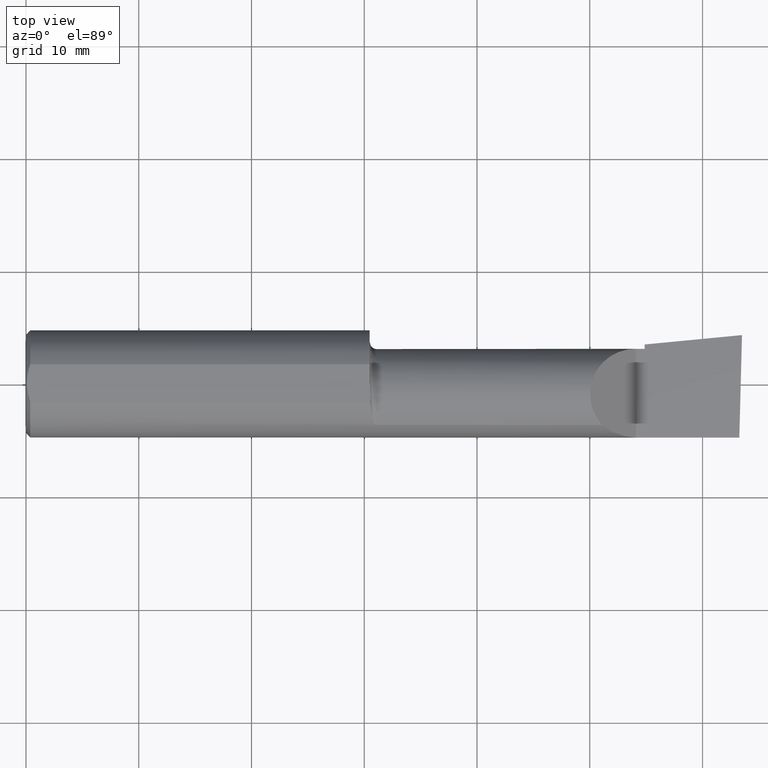
[diagram: clean part render]
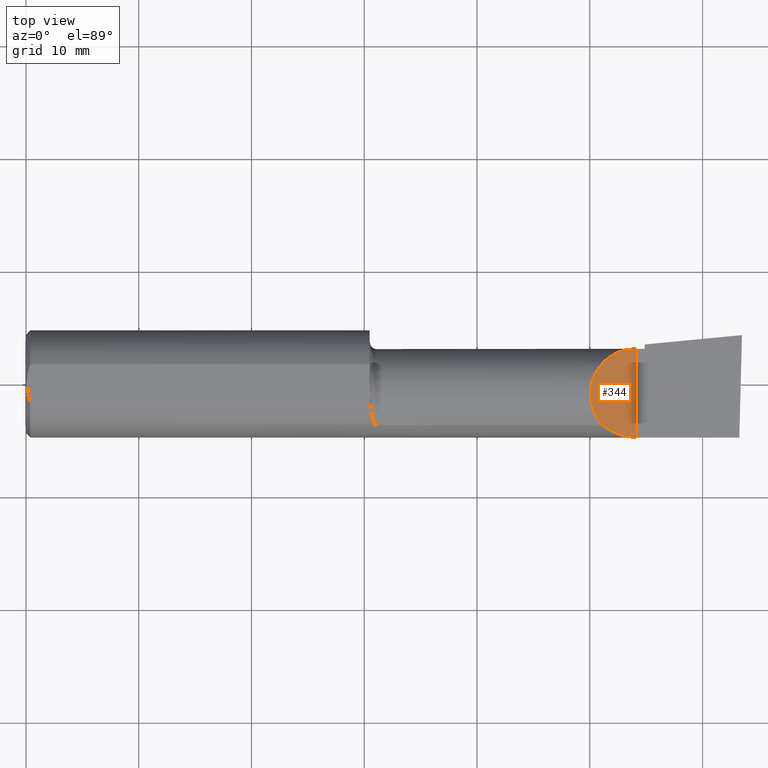
[diagram: same view with one face highlighted and labeled with its STEP entity id]
A machine part, top view. The second image highlights one B-rep face of the part: STEP entity #344.
In plain terms, the highlighted planar face has unit normal (-0.7071, 0, -0.7071).
Its self-contained STEP definition (entity closure, byte-faithful):
#18 = EDGE_CURVE ( 'NONE', #114, #513, #243, .T. ) ;
#35 = AXIS2_PLACEMENT_3D ( 'NONE', #56, #592, #48 ) ;
#48 = DIRECTION ( 'NONE',  ( -0.7071067811865511255, 0.000000000000000000, 0.7071067811865437980 ) ) ;
#54 = VECTOR ( 'NONE', #203, 39.37007874015748143 ) ;
#56 = CARTESIAN_POINT ( 'NONE',  ( 2.129999999999999893, -0.2500000000000000555, 1.065442715258197396E-16 ) ) ;
#74 = CARTESIAN_POINT ( 'NONE',  ( 2.129999999999999893, 0.1226499999999998147, 1.065442715258197396E-16 ) ) ;
#91 = CARTESIAN_POINT ( 'NONE',  ( 2.086590019116435268, -0.1873500000000000165, 0.04340998088356443074 ) ) ;
#114 = VERTEX_POINT ( 'NONE', #607 ) ;
#146 = EDGE_CURVE ( 'NONE', #416, #513, #434, .T. ) ;
#161 = CARTESIAN_POINT ( 'NONE',  ( 2.129999999999999893, 0.1226499999999998147, 1.065442715258197396E-16 ) ) ;
#203 = DIRECTION ( 'NONE',  ( -0.000000000000000000, 1.000000000000000000, -0.000000000000000000 ) ) ;
#210 = CARTESIAN_POINT ( 'NONE',  ( 1.902393788885675230, -0.02584108761840225171, 0.2276062111143221378 ) ) ;
#220 = EDGE_LOOP ( 'NONE', ( #308, #241, #566 ) ) ;
#240 = FACE_OUTER_BOUND ( 'NONE', #220, .T. ) ;
#241 = ORIENTED_EDGE ( 'NONE', *, *, #248, .F. ) ;
#243 = LINE ( 'NONE', #543, #54 ) ;
#248 = EDGE_CURVE ( 'NONE', #114, #416, #276, .T. ) ;
#264 = CARTESIAN_POINT ( 'NONE',  ( 2.011965325165093077, -0.1454917112299461968, 0.1180346748349056646 ) ) ;
#276 =( BOUNDED_CURVE ( )  B_SPLINE_CURVE ( 3, ( #336, #91, #533, #277 ),
 .UNSPECIFIED., .F., .F. ) 
 B_SPLINE_CURVE_WITH_KNOTS ( ( 4, 4 ),
 ( 4.712388980384689674, 5.393970886271890031 ),
 .UNSPECIFIED. ) 
 CURVE ( )  GEOMETRIC_REPRESENTATION_ITEM ( )  RATIONAL_B_SPLINE_CURVE ( ( 1.000000000000000000, 0.9616603987079546112, 0.9616603987079546112, 1.000000000000000000 ) ) 
 REPRESENTATION_ITEM ( '' )  );
#277 = CARTESIAN_POINT ( 'NONE',  ( 2.011965325165093077, -0.1454917112299461968, 0.1180346748349056646 ) ) ;
#308 = ORIENTED_EDGE ( 'NONE', *, *, #146, .F. ) ;
#336 = CARTESIAN_POINT ( 'NONE',  ( 2.129999999999999893, -0.1873499999999999888, 1.065442715258197396E-16 ) ) ;
#342 = PLANE ( 'NONE',  #35 ) ;
#344 = ADVANCED_FACE ( 'NONE', ( #240 ), #342, .F. ) ;
#416 = VERTEX_POINT ( 'NONE', #547 ) ;
#434 =( BOUNDED_CURVE ( )  B_SPLINE_CURVE ( 3, ( #264, #210, #555, #161 ),
 .UNSPECIFIED., .F., .F. ) 
 B_SPLINE_CURVE_WITH_KNOTS ( ( 4, 4 ),
 ( 5.541729662751389007, 7.853981633974482790 ),
 .UNSPECIFIED. ) 
 CURVE ( )  GEOMETRIC_REPRESENTATION_ITEM ( )  RATIONAL_B_SPLINE_CURVE ( ( 1.000000000000000000, 0.6019254882129729811, 0.6019254882129729811, 1.000000000000000000 ) ) 
 REPRESENTATION_ITEM ( '' )  );
#513 = VERTEX_POINT ( 'NONE', #74 ) ;
#533 = CARTESIAN_POINT ( 'NONE',  ( 2.045676520271626941, -0.1728409665178085863, 0.08432347972837213324 ) ) ;
#543 = CARTESIAN_POINT ( 'NONE',  ( 2.129999999999999893, -0.2500000000000000555, 1.065442715258197396E-16 ) ) ;
#547 = CARTESIAN_POINT ( 'NONE',  ( 2.011965325165093077, -0.1454917112299461968, 0.1180346748349056646 ) ) ;
#555 = CARTESIAN_POINT ( 'NONE',  ( 1.967758842172328881, 0.1226499999999999396, 0.1622411578276698185 ) ) ;
#566 = ORIENTED_EDGE ( 'NONE', *, *, #18, .T. ) ;
#592 = DIRECTION ( 'NONE',  ( -0.7071067811865439090, 0.000000000000000000, -0.7071067811865512365 ) ) ;
#607 = CARTESIAN_POINT ( 'NONE',  ( 2.129999999999999893, -0.1873499999999999888, 1.065442715258197396E-16 ) ) ;